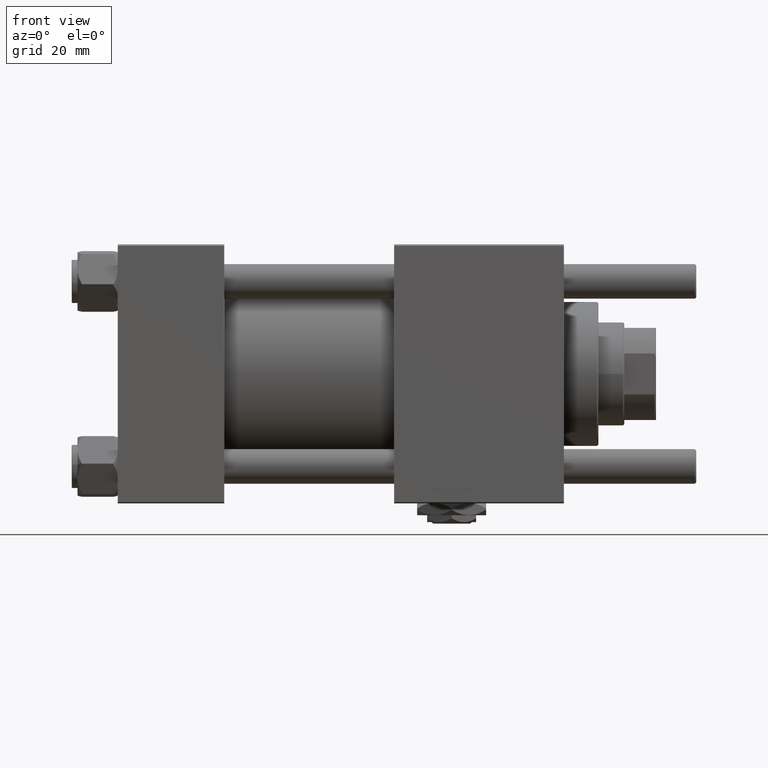
[diagram: clean part render]
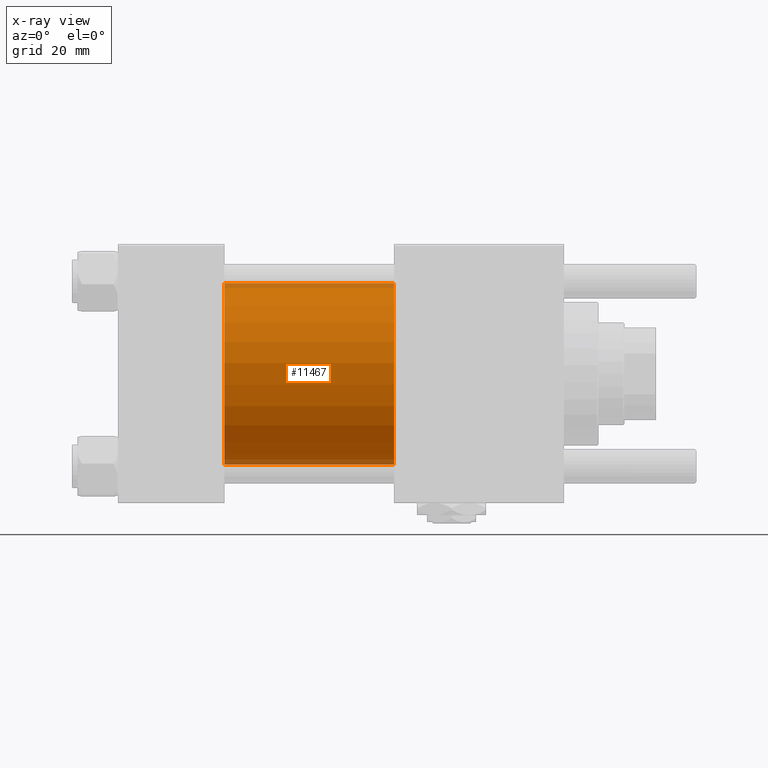
[diagram: x-ray — body ghosted, one internal face saturated and labeled with its STEP entity id]
A machine part, front view, then the same camera in x-ray: the body is ghosted and one INTERNAL B-rep face — a face not visible from any outside direction — is saturated and labeled: STEP entity #11467.
In plain terms, the highlighted cylindrical surface (partial cylindrical patch) has radius 31.5 mm, axis along (-1, -0, -0).
Its self-contained STEP definition (entity closure, byte-faithful):
#393 = DIRECTION ( 'NONE',  ( 0.000000000000000000, 0.000000000000000000, -1.000000000000000000 ) ) ;
#1111 = LINE ( 'NONE', #47201, #9196 ) ;
#1235 = VECTOR ( 'NONE', #11348, 1000.000000000000000 ) ;
#1543 = CARTESIAN_POINT ( 'NONE',  ( 37.00000000000000000, -2.602085213965210642E-15, 0.000000000000000000 ) ) ;
#2866 = CARTESIAN_POINT ( 'NONE',  ( 96.00000000000000000, -2.602085213965210642E-15, 0.000000000000000000 ) ) ;
#6908 = CARTESIAN_POINT ( 'NONE',  ( 96.00000000000000000, -2.602085213965210642E-15, 31.50000000000000000 ) ) ;
#8736 = CARTESIAN_POINT ( 'NONE',  ( 96.00000000000000000, -2.602085213965210642E-15, 31.50000000000000000 ) ) ;
#9196 = VECTOR ( 'NONE', #11438, 1000.000000000000000 ) ;
#10576 = EDGE_CURVE ( 'NONE', #55197, #56182, #16080, .T. ) ;
#11348 = DIRECTION ( 'NONE',  ( -1.000000000000000000, -0.000000000000000000, -0.000000000000000000 ) ) ;
#11438 = DIRECTION ( 'NONE',  ( -1.000000000000000000, -0.000000000000000000, -0.000000000000000000 ) ) ;
#11467 = ADVANCED_FACE ( 'NONE', ( #56069 ), #29780, .F. ) ;
#16080 = LINE ( 'NONE', #6908, #1235 ) ;
#17009 = ORIENTED_EDGE ( 'NONE', *, *, #45953, .T. ) ;
#18452 = DIRECTION ( 'NONE',  ( 1.000000000000000000, 0.000000000000000000, 0.000000000000000000 ) ) ;
#24760 = DIRECTION ( 'NONE',  ( 0.000000000000000000, 0.000000000000000000, 1.000000000000000000 ) ) ;
#29780 = CYLINDRICAL_SURFACE ( 'NONE', #53208, 31.50000000000000000 ) ;
#31570 = CIRCLE ( 'NONE', #42838, 31.50000000000000000 ) ;
#32376 = EDGE_LOOP ( 'NONE', ( #17009, #51509, #50819, #54478 ) ) ;
#33255 = CARTESIAN_POINT ( 'NONE',  ( 96.00000000000000000, 1.255552203348951850E-15, -31.50000000000000000 ) ) ;
#37462 = EDGE_CURVE ( 'NONE', #56182, #53964, #31570, .T. ) ;
#37501 = CIRCLE ( 'NONE', #50753, 31.50000000000000000 ) ;
#38284 = CARTESIAN_POINT ( 'NONE',  ( 37.00000000000000000, -2.602085213965210642E-15, 31.50000000000000000 ) ) ;
#42838 = AXIS2_PLACEMENT_3D ( 'NONE', #1543, #18452, #393 ) ;
#43645 = DIRECTION ( 'NONE',  ( -1.000000000000000000, -0.000000000000000000, -0.000000000000000000 ) ) ;
#44354 = DIRECTION ( 'NONE',  ( 1.000000000000000000, 0.000000000000000000, 0.000000000000000000 ) ) ;
#45193 = VERTEX_POINT ( 'NONE', #33255 ) ;
#45953 = EDGE_CURVE ( 'NONE', #55197, #45193, #37501, .T. ) ;
#47070 = EDGE_CURVE ( 'NONE', #45193, #53964, #1111, .T. ) ;
#47201 = CARTESIAN_POINT ( 'NONE',  ( 96.00000000000000000, 1.255552203348951850E-15, -31.50000000000000000 ) ) ;
#48489 = CARTESIAN_POINT ( 'NONE',  ( 96.00000000000000000, -2.602085213965210642E-15, 0.000000000000000000 ) ) ;
#50753 = AXIS2_PLACEMENT_3D ( 'NONE', #48489, #44354, #57071 ) ;
#50819 = ORIENTED_EDGE ( 'NONE', *, *, #37462, .F. ) ;
#51509 = ORIENTED_EDGE ( 'NONE', *, *, #47070, .T. ) ;
#52550 = CARTESIAN_POINT ( 'NONE',  ( 37.00000000000000000, 1.255552203348951850E-15, -31.50000000000000000 ) ) ;
#53208 = AXIS2_PLACEMENT_3D ( 'NONE', #2866, #43645, #24760 ) ;
#53964 = VERTEX_POINT ( 'NONE', #52550 ) ;
#54478 = ORIENTED_EDGE ( 'NONE', *, *, #10576, .F. ) ;
#55197 = VERTEX_POINT ( 'NONE', #8736 ) ;
#56069 = FACE_OUTER_BOUND ( 'NONE', #32376, .T. ) ;
#56182 = VERTEX_POINT ( 'NONE', #38284 ) ;
#57071 = DIRECTION ( 'NONE',  ( 0.000000000000000000, 0.000000000000000000, -1.000000000000000000 ) ) ;